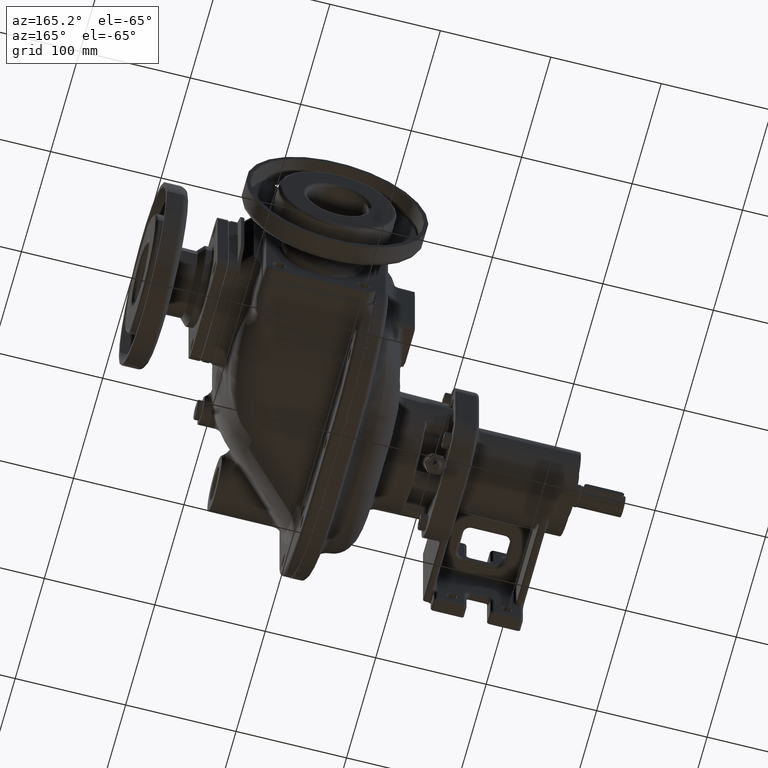
[diagram: clean part render]
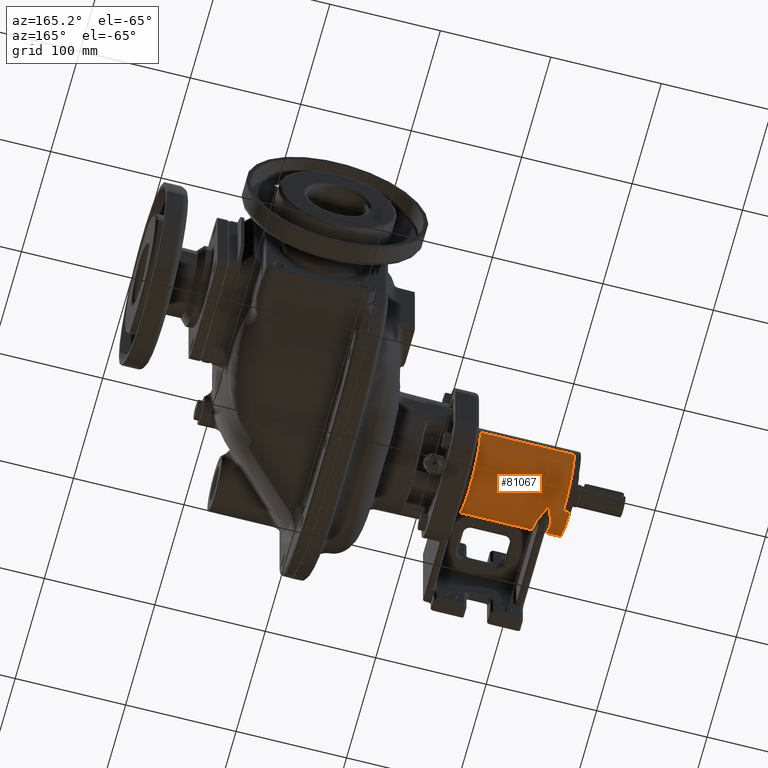
[diagram: same view with one face highlighted and labeled with its STEP entity id]
A machine part, auxiliary view. The second image highlights one B-rep face of the part: STEP entity #81067.
In plain terms, the highlighted cylindrical surface (partial cylindrical patch) has radius 38 mm, axis along (1, 0, 0).
Its self-contained STEP definition (entity closure, byte-faithful):
#31795=CARTESIAN_POINT('',(-2.355E2,1.3E2,0.E0));
#31796=DIRECTION('',(1.E0,0.E0,0.E0));
#31797=DIRECTION('',(0.E0,0.E0,-1.E0));
#31798=AXIS2_PLACEMENT_3D('',#31795,#31796,#31797);
#31800=DIRECTION('',(1.E0,0.E0,0.E0));
#31801=VECTOR('',#31800,6.E0);
#31802=CARTESIAN_POINT('',(-2.415E2,1.3E2,-3.8E1));
#31803=LINE('',#31802,#31801);
#31804=CARTESIAN_POINT('',(-2.415E2,1.3E2,0.E0));
#31805=DIRECTION('',(1.E0,0.E0,0.E0));
#31806=DIRECTION('',(0.E0,0.E0,1.E0));
#31807=AXIS2_PLACEMENT_3D('',#31804,#31805,#31806);
#31809=DIRECTION('',(1.E0,0.E0,0.E0));
#31810=VECTOR('',#31809,6.E0);
#31811=CARTESIAN_POINT('',(-2.415E2,1.3E2,3.8E1));
#31812=LINE('',#31811,#31810);
#31813=DIRECTION('',(-1.E0,0.E0,0.E0));
#31814=VECTOR('',#31813,7.E0);
#31815=CARTESIAN_POINT('',(-2.285E2,9.2E1,0.E0));
#31816=LINE('',#31815,#31814);
#31817=CARTESIAN_POINT('',(-2.285E2,1.3E2,0.E0));
#31818=DIRECTION('',(1.E0,0.E0,0.E0));
#31819=DIRECTION('',(0.E0,-1.E0,0.E0));
#31820=AXIS2_PLACEMENT_3D('',#31817,#31818,#31819);
#31822=CARTESIAN_POINT('',(-2.285E2,1.102083427523E2,-3.243902439024E1));
#31823=CARTESIAN_POINT('',(-2.284999999422E2,1.103692801255E2,
-3.253721531130E1));
#31824=CARTESIAN_POINT('',(-2.284943826213E2,1.106998198700E2,
-3.273559610436E1));
#31825=CARTESIAN_POINT('',(-2.284681593847E2,1.112216637904E2,
-3.303786530999E1));
#31826=CARTESIAN_POINT('',(-2.284231359922E2,1.117713204251E2,
-3.334445820154E1));
#31827=CARTESIAN_POINT('',(-2.283583332374E2,1.123496122254E2,
-3.365431870182E1));
#31828=CARTESIAN_POINT('',(-2.282728417613E2,1.129572682608E2,
-3.396626363856E1));
#31829=CARTESIAN_POINT('',(-2.281657625564E2,1.135952511362E2,
-3.427913488824E1));
#31830=CARTESIAN_POINT('',(-2.280362980549E2,1.142642060213E2,
-3.459152147484E1));
#31831=CARTESIAN_POINT('',(-2.278837345268E2,1.149647352913E2,
-3.490191492419E1));
#31832=CARTESIAN_POINT('',(-2.277074850343E2,1.156972563885E2,
-3.520865151056E1));
#31833=CARTESIAN_POINT('',(-2.275071152523E2,1.164619956170E2,
-3.550993121843E1));
#31834=CARTESIAN_POINT('',(-2.272823707577E2,1.172589601271E2,
-3.580382824478E1));
#31835=CARTESIAN_POINT('',(-2.270332076004E2,1.180879025122E2,
-3.608830439850E1));
#31836=CARTESIAN_POINT('',(-2.267598194047E2,1.189482933994E2,
-3.636123058697E1));
#31837=CARTESIAN_POINT('',(-2.264626642038E2,1.198392879044E2,
-3.662041143924E1));
#31838=CARTESIAN_POINT('',(-2.261424881177E2,1.207597083470E2,
-3.686361984008E1));
#31839=CARTESIAN_POINT('',(-2.258003432175E2,1.217080253506E2,
-3.708863434896E1));
#31840=CARTESIAN_POINT('',(-2.254375987849E2,1.226823470154E2,
-3.729328182855E1));
#31841=CARTESIAN_POINT('',(-2.250559439140E2,1.236804185997E2,
-3.747548452678E1));
#31842=CARTESIAN_POINT('',(-2.246573773037E2,1.246996396315E2,
-3.763330915677E1));
#31843=CARTESIAN_POINT('',(-2.242442067033E2,1.257370416358E2,
-3.776501189900E1));
#31844=CARTESIAN_POINT('',(-2.238189916149E2,1.267893986887E2,
-3.786909270607E1));
#31845=CARTESIAN_POINT('',(-2.233845683060E2,1.278531142952E2,
-3.794433623002E1));
#31846=CARTESIAN_POINT('',(-2.229437780869E2,1.289248171448E2,
-3.798984562479E1));
#31847=CARTESIAN_POINT('',(-2.226481221634E2,1.296411322151E2,
-3.799999973354E1));
#31848=CARTESIAN_POINT('',(-2.225E2,1.3E2,-3.8E1));
#31850=DIRECTION('',(1.E0,0.E0,0.E0));
#31851=VECTOR('',#31850,1.E0);
#31852=CARTESIAN_POINT('',(-2.225E2,1.3E2,-3.8E1));
#31853=LINE('',#31852,#31851);
#31854=CARTESIAN_POINT('',(-2.215E2,1.3E2,-3.8E1));
#31855=CARTESIAN_POINT('',(-2.213518793940E2,1.296411357627E2,
-3.799999976587E1));
#31856=CARTESIAN_POINT('',(-2.210562257478E2,1.289248264904E2,
-3.798984595435E1));
#31857=CARTESIAN_POINT('',(-2.206154297755E2,1.278531093967E2,
-3.794433596552E1));
#31858=CARTESIAN_POINT('',(-2.201810142209E2,1.267894126824E2,
-3.786909364634E1));
#31859=CARTESIAN_POINT('',(-2.197558070401E2,1.257370757802E2,
-3.776501562423E1));
#31860=CARTESIAN_POINT('',(-2.193426400475E2,1.246996840536E2,
-3.763331531644E1));
#31861=CARTESIAN_POINT('',(-2.189440771131E2,1.236804739430E2,
-3.747549377523E1));
#31862=CARTESIAN_POINT('',(-2.185624239485E2,1.226824070674E2,
-3.729329359851E1));
#31863=CARTESIAN_POINT('',(-2.181996792318E2,1.217080845852E2,
-3.708864760545E1));
#31864=CARTESIAN_POINT('',(-2.178575328943E2,1.207597650882E2,
-3.686363409422E1));
#31865=CARTESIAN_POINT('',(-2.175373537126E2,1.198393390441E2,
-3.662042568830E1));
#31866=CARTESIAN_POINT('',(-2.172401942420E2,1.189483364506E2,
-3.636124374708E1));
#31867=CARTESIAN_POINT('',(-2.169668013795E2,1.180879354352E2,
-3.608831536811E1));
#31868=CARTESIAN_POINT('',(-2.167176340112E2,1.172589791732E2,
-3.580383514768E1));
#31869=CARTESIAN_POINT('',(-2.164928860762E2,1.164619996452E2,
-3.550993288222E1));
#31870=CARTESIAN_POINT('',(-2.162925133247E2,1.156972459197E2,
-3.520864736204E1));
#31871=CARTESIAN_POINT('',(-2.161162614388E2,1.149647131242E2,
-3.490190548350E1));
#31872=CARTESIAN_POINT('',(-2.159636947318E2,1.142641696128E2,
-3.459150501444E1));
#31873=CARTESIAN_POINT('',(-2.158342286966E2,1.135952058104E2,
-3.427911324977E1));
#31874=CARTESIAN_POINT('',(-2.157271494280E2,1.129572143585E2,
-3.396623670864E1));
#31875=CARTESIAN_POINT('',(-2.156416581611E2,1.123495431583E2,
-3.365428252942E1));
#31876=CARTESIAN_POINT('',(-2.155768580071E2,1.117712563334E2,
-3.334442310466E1));
#31877=CARTESIAN_POINT('',(-2.155318372655E2,1.112216111741E2,
-3.303783525513E1));
#31878=CARTESIAN_POINT('',(-2.155056168988E2,1.106997965653E2,
-3.273558216495E1));
#31879=CARTESIAN_POINT('',(-2.155000000594E2,1.103692721606E2,
-3.253721045069E1));
#31880=CARTESIAN_POINT('',(-2.155E2,1.102083427523E2,-3.243902439024E1));
#31882=CARTESIAN_POINT('',(-2.155E2,1.3E2,0.E0));
#31883=DIRECTION('',(-1.E0,0.E0,0.E0));
#31884=DIRECTION('',(0.E0,-5.208330854649E-1,-8.536585365854E-1));
#31885=AXIS2_PLACEMENT_3D('',#31882,#31883,#31884);
#31887=DIRECTION('',(1.E0,0.E0,0.E0));
#31888=VECTOR('',#31887,6.5E1);
#31889=CARTESIAN_POINT('',(-2.155E2,9.248058206489E1,-6.024390243902E0));
#31890=LINE('',#31889,#31888);
#31891=CARTESIAN_POINT('',(-1.505E2,1.3E2,0.E0));
#31892=DIRECTION('',(1.E0,0.E0,0.E0));
#31893=DIRECTION('',(0.E0,-9.873531035554E-1,-1.585365853659E-1));
#31894=AXIS2_PLACEMENT_3D('',#31891,#31892,#31893);
#31896=DIRECTION('',(-1.E0,0.E0,0.E0));
#31897=VECTOR('',#31896,8.5E1);
#31898=CARTESIAN_POINT('',(-1.505E2,1.68E2,0.E0));
#31899=LINE('',#31898,#31897);
#31900=CARTESIAN_POINT('',(-2.355E2,1.3E2,0.E0));
#31901=DIRECTION('',(1.E0,0.E0,0.E0));
#31902=DIRECTION('',(0.E0,0.E0,1.E0));
#31903=AXIS2_PLACEMENT_3D('',#31900,#31901,#31902);
#44122=CARTESIAN_POINT('',(-2.215E2,1.3E2,-3.8E1));
#44123=VERTEX_POINT('',#44122);
#44128=VERTEX_POINT('',#31822);
#44129=VERTEX_POINT('',#31848);
#44131=VERTEX_POINT('',#31880);
#44132=CARTESIAN_POINT('',(-2.155E2,9.248058206489E1,-6.024390243902E0));
#44133=VERTEX_POINT('',#44132);
#44134=CARTESIAN_POINT('',(-1.505E2,9.248058206489E1,-6.024390243902E0));
#44135=VERTEX_POINT('',#44134);
#44158=CARTESIAN_POINT('',(-1.505E2,1.68E2,0.E0));
#44159=VERTEX_POINT('',#44158);
#44317=CARTESIAN_POINT('',(-2.285E2,9.2E1,0.E0));
#44318=VERTEX_POINT('',#44317);
#44387=CARTESIAN_POINT('',(-2.415E2,1.3E2,3.8E1));
#44388=CARTESIAN_POINT('',(-2.415E2,1.3E2,-3.8E1));
#44389=VERTEX_POINT('',#44387);
#44390=VERTEX_POINT('',#44388);
#44407=CARTESIAN_POINT('',(-2.355E2,1.3E2,3.8E1));
#44408=CARTESIAN_POINT('',(-2.355E2,9.2E1,0.E0));
#44409=VERTEX_POINT('',#44407);
#44410=VERTEX_POINT('',#44408);
#44411=CARTESIAN_POINT('',(-2.355E2,1.3E2,-3.8E1));
#44412=CARTESIAN_POINT('',(-2.355E2,1.68E2,0.E0));
#44413=VERTEX_POINT('',#44411);
#44414=VERTEX_POINT('',#44412);
#81033=CARTESIAN_POINT('',(-2.4395E2,1.3E2,0.E0));
#81034=DIRECTION('',(1.E0,0.E0,0.E0));
#81035=DIRECTION('',(0.E0,-1.E0,0.E0));
#81036=AXIS2_PLACEMENT_3D('',#81033,#81034,#81035);
#81037=CYLINDRICAL_SURFACE('',#81036,3.8E1);
#81039=ORIENTED_EDGE('',*,*,#81038,.F.);
#81041=ORIENTED_EDGE('',*,*,#81040,.F.);
#81043=ORIENTED_EDGE('',*,*,#81042,.F.);
#81045=ORIENTED_EDGE('',*,*,#81044,.T.);
#81047=ORIENTED_EDGE('',*,*,#81046,.T.);
#81049=ORIENTED_EDGE('',*,*,#81048,.F.);
#81051=ORIENTED_EDGE('',*,*,#81050,.T.);
#81052=ORIENTED_EDGE('',*,*,#81025,.T.);
#81054=ORIENTED_EDGE('',*,*,#81053,.T.);
#81056=ORIENTED_EDGE('',*,*,#81055,.T.);
#81058=ORIENTED_EDGE('',*,*,#81057,.T.);
#81060=ORIENTED_EDGE('',*,*,#81059,.T.);
#81062=ORIENTED_EDGE('',*,*,#81061,.T.);
#81064=ORIENTED_EDGE('',*,*,#81063,.T.);
#81065=EDGE_LOOP('',(#81039,#81041,#81043,#81045,#81047,#81049,#81051,#81052,
#81054,#81056,#81058,#81060,#81062,#81064));
#81066=FACE_OUTER_BOUND('',#81065,.F.);
#81067=ADVANCED_FACE('',(#81066),#81037,.T.);
#31799=CIRCLE('',#31798,3.8E1);
#31808=CIRCLE('',#31807,3.8E1);
#31821=CIRCLE('',#31820,3.8E1);
#31849=B_SPLINE_CURVE_WITH_KNOTS('',3,(#31822,#31823,#31824,#31825,#31826,
#31827,#31828,#31829,#31830,#31831,#31832,#31833,#31834,#31835,#31836,#31837,
#31838,#31839,#31840,#31841,#31842,#31843,#31844,#31845,#31846,#31847,#31848),
.UNSPECIFIED.,.F.,.F.,(4,1,1,1,1,1,1,1,1,1,1,1,1,1,1,1,1,1,1,1,1,1,1,1,4),(0.E0,
4.166666666667E-2,8.333333333333E-2,1.25E-1,1.666666666667E-1,2.083333333333E-1,
2.5E-1,2.916666666667E-1,3.333333333333E-1,3.75E-1,4.166666666667E-1,
4.583333333333E-1,5.E-1,5.416666666667E-1,5.833333333333E-1,6.25E-1,
6.666666666667E-1,7.083333333333E-1,7.5E-1,7.916666666667E-1,8.333333333333E-1,
8.75E-1,9.166666666667E-1,9.583333333333E-1,1.E0),.UNSPECIFIED.);
#31881=B_SPLINE_CURVE_WITH_KNOTS('',3,(#31854,#31855,#31856,#31857,#31858,
#31859,#31860,#31861,#31862,#31863,#31864,#31865,#31866,#31867,#31868,#31869,
#31870,#31871,#31872,#31873,#31874,#31875,#31876,#31877,#31878,#31879,#31880),
.UNSPECIFIED.,.F.,.F.,(4,1,1,1,1,1,1,1,1,1,1,1,1,1,1,1,1,1,1,1,1,1,1,1,4),(0.E0,
4.166666666667E-2,8.333333333333E-2,1.25E-1,1.666666666667E-1,2.083333333333E-1,
2.5E-1,2.916666666667E-1,3.333333333333E-1,3.75E-1,4.166666666667E-1,
4.583333333333E-1,5.E-1,5.416666666667E-1,5.833333333333E-1,6.25E-1,
6.666666666667E-1,7.083333333333E-1,7.5E-1,7.916666666667E-1,8.333333333333E-1,
8.75E-1,9.166666666667E-1,9.583333333333E-1,1.E0),.UNSPECIFIED.);
#31886=CIRCLE('',#31885,3.8E1);
#31895=CIRCLE('',#31894,3.8E1);
#31904=CIRCLE('',#31903,3.8E1);
#81025=EDGE_CURVE('',#44128,#44129,#31849,.T.);
#81038=EDGE_CURVE('',#44413,#44414,#31799,.T.);
#81040=EDGE_CURVE('',#44390,#44413,#31803,.T.);
#81042=EDGE_CURVE('',#44389,#44390,#31808,.T.);
#81044=EDGE_CURVE('',#44389,#44409,#31812,.T.);
#81046=EDGE_CURVE('',#44409,#44410,#31904,.T.);
#81048=EDGE_CURVE('',#44318,#44410,#31816,.T.);
#81050=EDGE_CURVE('',#44318,#44128,#31821,.T.);
#81053=EDGE_CURVE('',#44129,#44123,#31853,.T.);
#81055=EDGE_CURVE('',#44123,#44131,#31881,.T.);
#81057=EDGE_CURVE('',#44131,#44133,#31886,.T.);
#81059=EDGE_CURVE('',#44133,#44135,#31890,.T.);
#81061=EDGE_CURVE('',#44135,#44159,#31895,.T.);
#81063=EDGE_CURVE('',#44159,#44414,#31899,.T.);